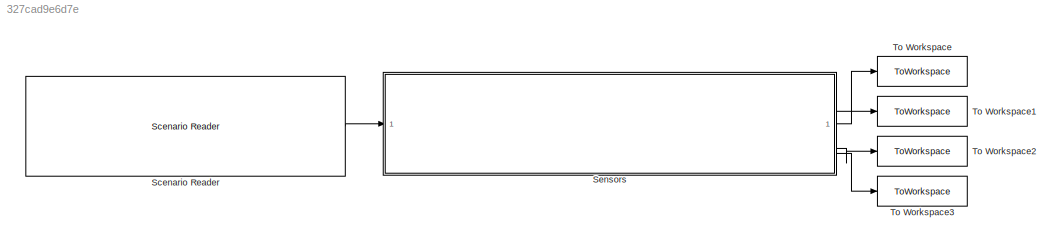
MODEL slx_327cad9e6d7e
KIND model
CONFIG AbsTol = auto
CONFIG EnableMultiTasking = off
CONFIG FixedStep = auto
CONFIG MaxStep = auto
CONFIG MinStep = auto
CONFIG RelTol = 1e-3
CONFIG SampleTimeConstraint = Unconstrained
CONFIG SolverName = FixedStepDiscrete
CONFIG StartTime = 0.0
CONFIG StopTime = 5
WORKSPACE source: mxarray member
WORKSPACE firstWarning = 1
WORKSPACE originalScenarioChecksum = 'D9A8A874DDF06836B13C2FAA3BE817CB'
BLOCK [Reference] Scenario Reader  REF=drivingscenarioandsensors/Scenario Reader
  SourceBlock = drivingscenarioandsensors/Scenario Reader
  SourceType = driving.scenario.internal.ScenarioReader
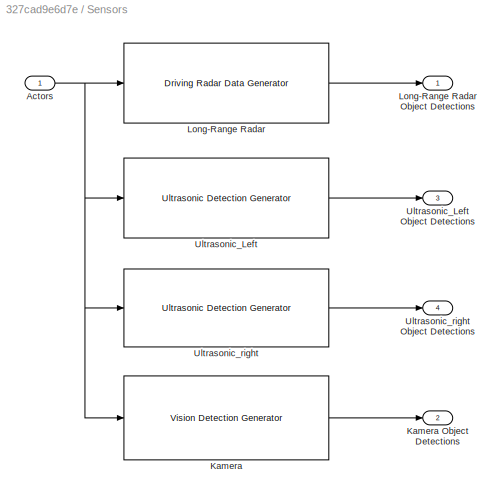
BLOCK [SubSystem] Sensors
BLOCK [Inport] Sensors/Actors
BLOCK [Reference] Sensors/Kamera  REF=drivingscenarioandsensors/Vision Detection Generator
  SourceBlock = drivingscenarioandsensors/Vision Detection Generator
  SourceType = visionDetectionGenerator
BLOCK [Outport] Sensors/Kamera Object Detections
  Port = 2
BLOCK [Reference] Sensors/Long-Range Radar  REF=drivingscenarioandsensors/Driving Radar Data Generator
  SourceBlock = drivingscenarioandsensors/Driving Radar Data Generator
  SourceType = drivingRadarDataGenerator
BLOCK [Outport] Sensors/Long-Range Radar Object Detections
BLOCK [Reference] Sensors/Ultrasonic_Left  REF=drivingscenarioandsensors/Ultrasonic Detection Generator
  SourceBlock = drivingscenarioandsensors/Ultrasonic Detection Generator
  SourceType = ultrasonicDetectionGenerator
BLOCK [Outport] Sensors/Ultrasonic_Left Object Detections
  Port = 3
BLOCK [Reference] Sensors/Ultrasonic_right  REF=drivingscenarioandsensors/Ultrasonic Detection Generator
  SourceBlock = drivingscenarioandsensors/Ultrasonic Detection Generator
  SourceType = ultrasonicDetectionGenerator
BLOCK [Outport] Sensors/Ultrasonic_right Object Detections
  Port = 4
BLOCK [ToWorkspace] To Workspace
  FixptAsFi = on
  MaxDataPoints = inf
  SampleTime = -1
  SaveFormat = Timeseries
  VariableName = Radar
BLOCK [ToWorkspace] To Workspace1
  FixptAsFi = on
  MaxDataPoints = inf
  SampleTime = -1
  SaveFormat = Timeseries
  VariableName = Kamera
BLOCK [ToWorkspace] To Workspace2
  FixptAsFi = on
  MaxDataPoints = inf
  SampleTime = -1
  SaveFormat = Timeseries
  VariableName = Ultraschall_links
BLOCK [ToWorkspace] To Workspace3
  FixptAsFi = on
  MaxDataPoints = inf
  SampleTime = -1
  SaveFormat = Timeseries
  VariableName = Ultraschall_rechts
LINE Scenario Reader:1 -> Sensors:1
NET Sensors/Actors:1 -> Sensors/Kamera:1, Sensors/Long-Range Radar:1, Sensors/Ultrasonic_Left:1, Sensors/Ultrasonic_right:1
LINE Sensors/Kamera:1 -> Sensors/Kamera Object Detections:1
LINE Sensors/Long-Range Radar:1 -> Sensors/Long-Range Radar Object Detections:1
LINE Sensors/Ultrasonic_Left:1 -> Sensors/Ultrasonic_Left Object Detections:1
LINE Sensors/Ultrasonic_right:1 -> Sensors/Ultrasonic_right Object Detections:1
LINE Sensors:1 -> To Workspace:1
LINE Sensors:2 -> To Workspace1:1
LINE Sensors:3 -> To Workspace2:1
LINE Sensors:4 -> To Workspace3:1
note: NET lines group one-source signal fan-out (src -> all destinations, sorted); 1:1 wires keep LINE
